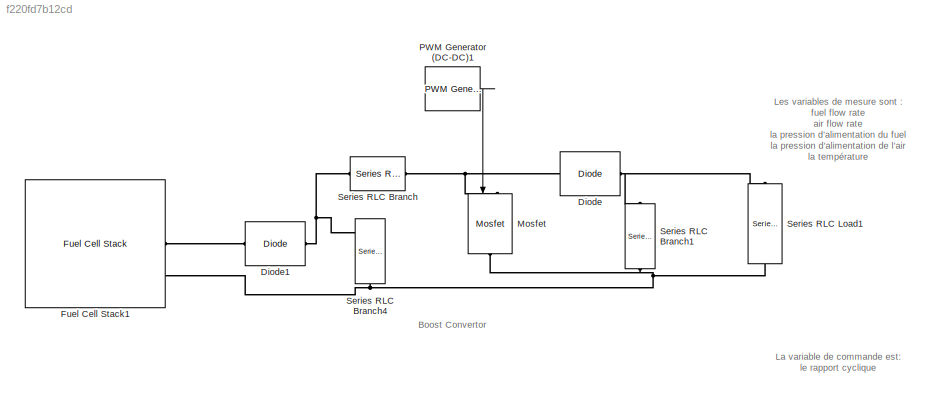
MODEL slx_f220fd7b12cd
KIND model
CONFIG AbsTol = auto
CONFIG EnableMultiTasking = off
CONFIG FixedStep = auto
CONFIG MaxStep = auto
CONFIG MinStep = auto
CONFIG RelTol = 1e-3
CONFIG SampleTimeConstraint = Unconstrained
CONFIG SolverName = VariableStepAuto
CONFIG StartTime = 0.0
CONFIG StopTime = 10.0
BLOCK [Reference] Diode  REF=powerlib/Power Electronics/Diode
  Ports = [0, 0, 0, 0, 0, 1, 1]
  SourceBlock = powerlib/Power Electronics/Diode
  SourceType = Diode
BLOCK [Reference] Diode1  REF=powerlib/Power Electronics/Diode
  Ports = [0, 0, 0, 0, 0, 1, 1]
  SourceBlock = powerlib/Power Electronics/Diode
  SourceType = Diode
BLOCK [Reference] Fuel Cell Stack1  REF=spsFuelCellStackLib/Fuel Cell Stack
  Ports = [5, 1, 0, 0, 0, 0, 2]
  SourceBlock = spsFuelCellStackLib/Fuel Cell Stack
  SourceType = Fuel Cell Stack
BLOCK [Reference] Mosfet  REF=powerlib/Power Electronics/Mosfet
  NameLocation = left
  Ports = [1, 0, 0, 0, 0, 1, 1]
  SourceBlock = powerlib/Power Electronics/Mosfet
  SourceType = Mosfet
BLOCK [Reference] PWM Generator (DC-DC)1  REF=powerlib_meascontrol/Pulse & Signal Generators/PWM Generator (DC-DC)
  Ports = [1, 1]
  SourceBlock = powerlib_meascontrol/Pulse & Signal Generators/PWM Generator (DC-DC)
  SourceType = PWM Generator (DC-DC)
BLOCK [Reference] Series RLC Branch  REF=powerlib/Elements/Series RLC Branch
  Ports = [0, 0, 0, 0, 0, 1, 1]
  SourceBlock = powerlib/Elements/Series RLC Branch
  SourceType = Series RLC Branch
BLOCK [Reference] Series RLC Branch1  REF=powerlib/Elements/Series RLC Branch
  NameLocation = left
  Ports = [0, 0, 0, 0, 0, 1, 1]
  SourceBlock = powerlib/Elements/Series RLC Branch
  SourceType = Series RLC Branch
BLOCK [Reference] Series RLC Branch4  REF=powerlib/Elements/Series RLC Branch
  NameLocation = left
  Ports = [0, 0, 0, 0, 0, 1, 1]
  SourceBlock = powerlib/Elements/Series RLC Branch
  SourceType = Series RLC Branch
BLOCK [Reference] Series RLC Load1  REF=powerlib/Elements/Series RLC Load
  AttributesFormatString = \n
  NameLocation = left
  Ports = [0, 0, 0, 0, 0, 1, 1]
  SourceBlock = powerlib/Elements/Series RLC Load
  SourceType = Series RLC Load
ANNOTATION (root): La variable de commande est: le rapport cyclique
ANNOTATION (root): Les variables de mesure sont : fuel flow rate air flow rate la pression d’alimentation du fuel la pression d’alimentation de l’air la température la tension imposée par le boost à la sortie de la pile la tension aux bornes de la charge
ANNOTATION (root): Boost Convertor
LINE PWM Generator (DC-DC)1:1 -> Mosfet:1
PLINE Diode1:LConn1 -- Fuel Cell Stack1:RConn1
PNET net1: Diode1:RConn1 -- Series RLC Branch4:LConn1 -- Series RLC Branch:LConn1
PNET net2: Diode:LConn1 -- Mosfet:LConn1 -- Series RLC Branch:RConn1
PNET net3: Diode:RConn1 -- Series RLC Branch1:LConn1 -- Series RLC Load1:LConn1
PNET net4: Fuel Cell Stack1:RConn2 -- Mosfet:RConn1 -- Series RLC Branch1:RConn1 -- Series RLC Branch4:RConn1 -- Series RLC Load1:RConn1
note: PNET lines group multi-terminal physical nets as a canonical sorted terminal list (undirected conserving connections); 2-terminal nets keep the pairwise PLINE form
